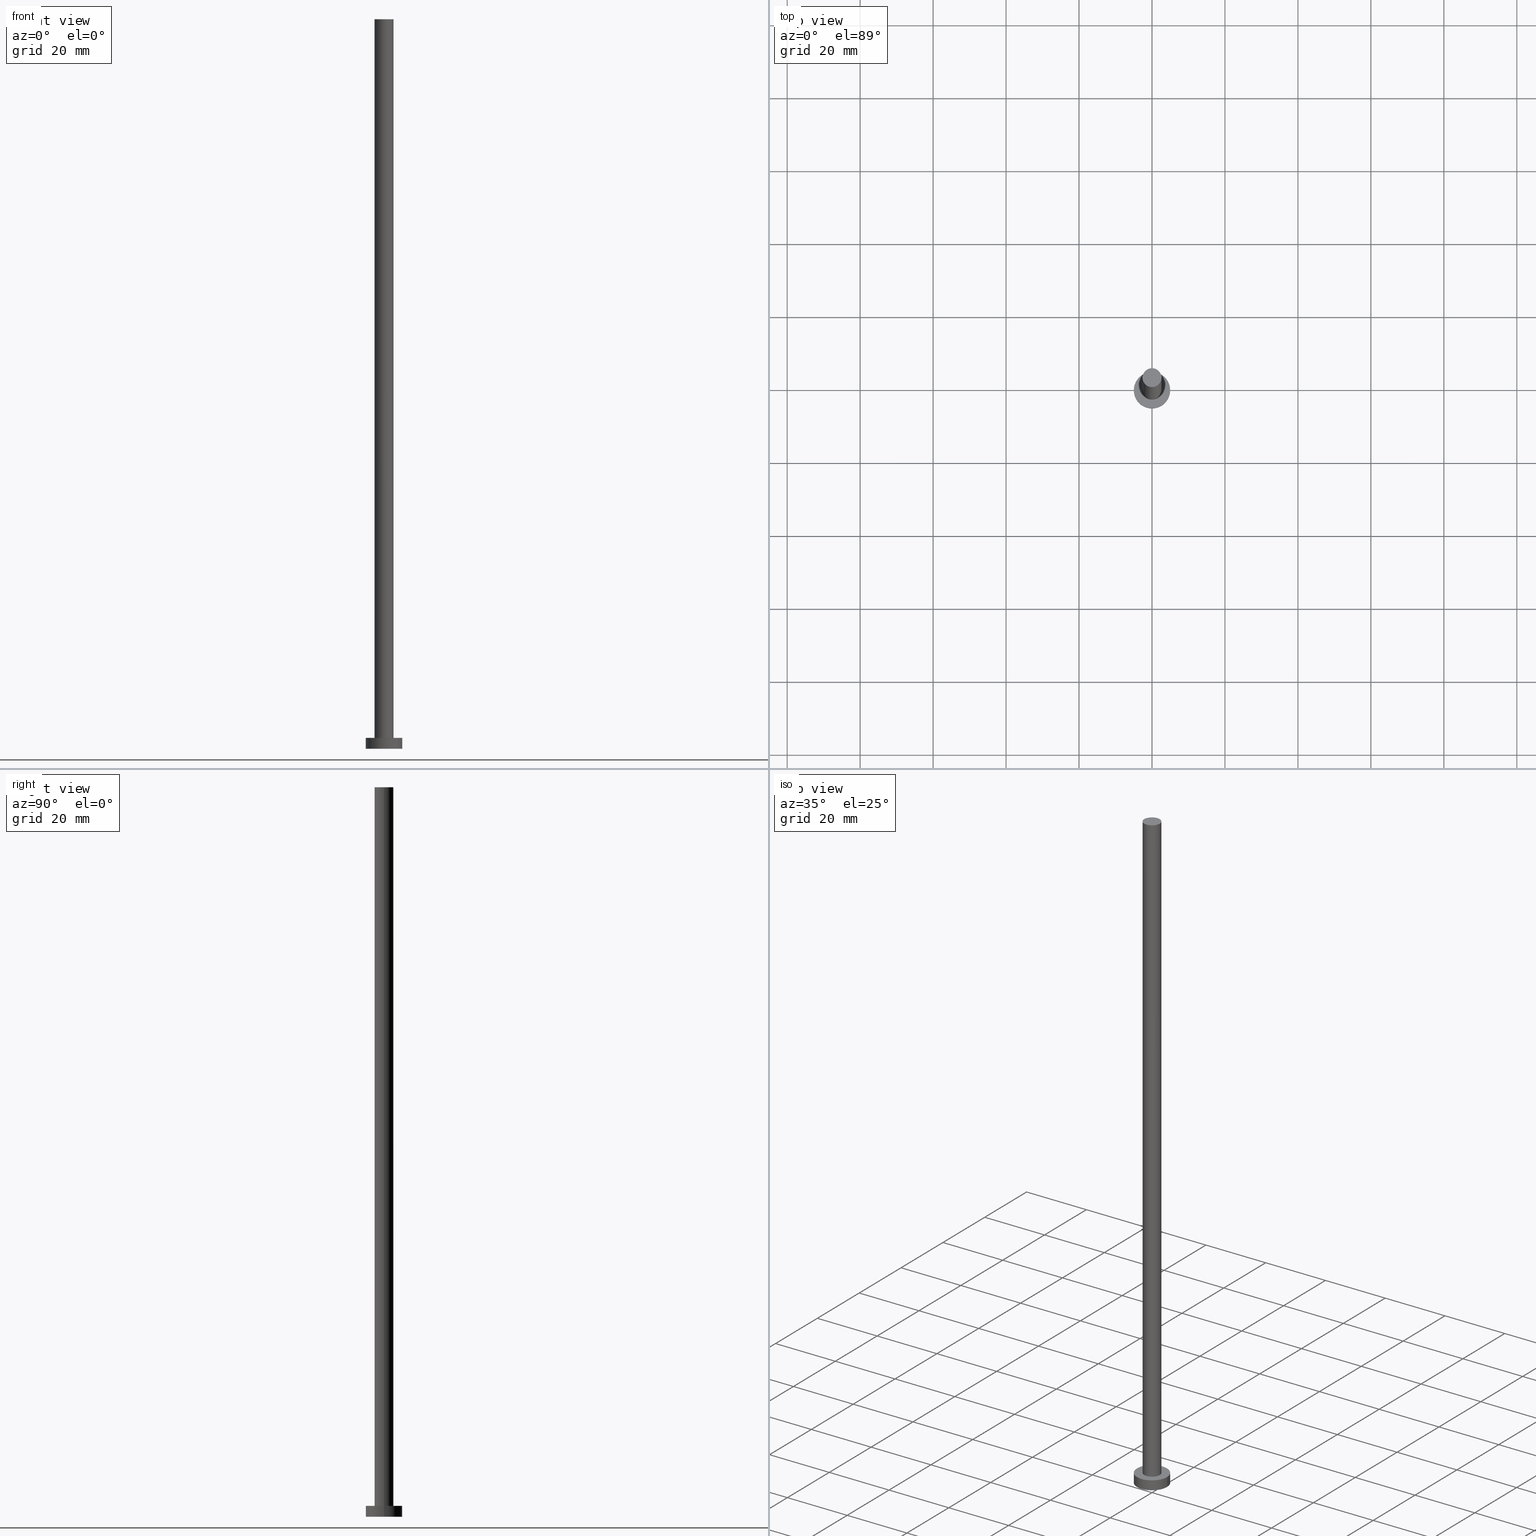
[diagram: canonical four-view strip — front | top / right | iso, engineering-drawing reading convention]
A machine part, canonical four-view strip (front | top / right | iso — engineering-drawing reading convention). The complete STEP part file that produces these views, byte-faithful:
ISO-10303-21;
HEADER;
FILE_DESCRIPTION (( 'STEP AP203' ),
    '1' );
FILE_NAME ('112c.STEP',
    '2023-02-13T15:48:55',
    ( '' ),
    ( '' ),
    'SwSTEP 2.0',
    'SolidWorks 2019',
    '' );
FILE_SCHEMA (( 'CONFIG_CONTROL_DESIGN' ));
ENDSEC;

DATA;
#1 = APPROVAL_DATE_TIME ( #42, #195 ) ;
#2 = VERTEX_POINT ( 'NONE', #236 ) ;
#3 = COORDINATED_UNIVERSAL_TIME_OFFSET ( 1, 0, .AHEAD. ) ;
#4 = PERSON_AND_ORGANIZATION ( #152, #5 ) ;
#5 = ORGANIZATION ( 'NEUR�EN�', 'NEUR�EN�', '' ) ;
#6 = VERTEX_POINT ( 'NONE', #55 ) ;
#7 = ORIENTED_EDGE ( 'NONE', *, *, #43, .F. ) ;
#8 = CARTESIAN_POINT ( 'NONE',  ( -5.000000000000000000, 0.000000000000000000, 3.000000000000000000 ) ) ;
#9 = AXIS2_PLACEMENT_3D ( 'NONE', #88, #146, #169 ) ;
#10 = AXIS2_PLACEMENT_3D ( 'NONE', #227, #147, #206 ) ;
#11 = APPLICATION_CONTEXT ( 'configuration controlled 3d designs of mechanical parts and assemblies' ) ;
#12 = DIRECTION ( 'NONE',  ( 0.000000000000000000, 0.000000000000000000, 1.000000000000000000 ) ) ;
#13 = ADVANCED_FACE ( 'NONE', ( #105 ), #86, .T. ) ;
#14 = FACE_OUTER_BOUND ( 'NONE', #140, .T. ) ;
#15 = APPROVAL_PERSON_ORGANIZATION ( #4, #185, #192 ) ;
#16 = DIRECTION ( 'NONE',  ( 0.000000000000000000, 0.000000000000000000, 1.000000000000000000 ) ) ;
#17 = LINE ( 'NONE', #184, #45 ) ;
#18 = PERSON_AND_ORGANIZATION ( #152, #5 ) ;
#19 = ORIENTED_EDGE ( 'NONE', *, *, #51, .F. ) ;
#20 = AXIS2_PLACEMENT_3D ( 'NONE', #90, #50, #253 ) ;
#21 = PERSON_AND_ORGANIZATION_ROLE ( 'creator' ) ;
#22 = EDGE_LOOP ( 'NONE', ( #176, #135 ) ) ;
#23 = ORIENTED_EDGE ( 'NONE', *, *, #139, .T. ) ;
#24 = APPROVAL_DATE_TIME ( #136, #185 ) ;
#25 = CIRCLE ( 'NONE', #190, 2.600000000000000089 ) ;
#26 = ORIENTED_EDGE ( 'NONE', *, *, #203, .F. ) ;
#27 = LOCAL_TIME ( 16, 48, 55.00000000000000000, #153 ) ;
#28 = DESIGN_CONTEXT ( 'detailed design', #204, 'design' ) ;
#29 = VERTEX_POINT ( 'NONE', #180 ) ;
#30 = DIRECTION ( 'NONE',  ( 1.000000000000000000, 0.000000000000000000, -0.000000000000000000 ) ) ;
#31 = PLANE ( 'NONE',  #200 ) ;
#32 = EDGE_CURVE ( 'NONE', #2, #29, #246, .T. ) ;
#33 = CIRCLE ( 'NONE', #84, 5.000000000000000000 ) ;
#34 = FACE_OUTER_BOUND ( 'NONE', #44, .T. ) ;
#35 =( NAMED_UNIT ( * ) PLANE_ANGLE_UNIT ( ) SI_UNIT ( $, .RADIAN. ) );
#36 = DIRECTION ( 'NONE',  ( -1.000000000000000000, 0.000000000000000000, 0.000000000000000000 ) ) ;
#37 = CARTESIAN_POINT ( 'NONE',  ( 0.000000000000000000, 0.000000000000000000, 3.000000000000000000 ) ) ;
#38 = DIRECTION ( 'NONE',  ( 0.000000000000000000, 0.000000000000000000, 1.000000000000000000 ) ) ;
#39 = DIRECTION ( 'NONE',  ( 0.000000000000000000, 0.000000000000000000, 1.000000000000000000 ) ) ;
#40 = DATE_AND_TIME ( #215, #225 ) ;
#41 = ORIENTED_EDGE ( 'NONE', *, *, #203, .T. ) ;
#42 = DATE_AND_TIME ( #211, #100 ) ;
#43 = EDGE_CURVE ( 'NONE', #214, #119, #62, .T. ) ;
#44 = EDGE_LOOP ( 'NONE', ( #7, #138, #154, #76 ) ) ;
#45 = VECTOR ( 'NONE', #254, 1000.000000000000000 ) ;
#46 = PERSON_AND_ORGANIZATION ( #152, #5 ) ;
#47 = CARTESIAN_POINT ( 'NONE',  ( -2.600000000000000089, 0.000000000000000000, 3.000000000000000000 ) ) ;
#48 = CARTESIAN_POINT ( 'NONE',  ( 2.600000000000000089, 3.184081677783118191E-16, 3.000000000000000000 ) ) ;
#49 = CARTESIAN_POINT ( 'NONE',  ( 0.000000000000000000, 0.000000000000000000, 3.000000000000000000 ) ) ;
#50 = DIRECTION ( 'NONE',  ( -0.000000000000000000, -0.000000000000000000, -1.000000000000000000 ) ) ;
#51 = EDGE_CURVE ( 'NONE', #196, #29, #80, .T. ) ;
#52 = APPROVAL_STATUS ( 'not_yet_approved' ) ;
#53 = VECTOR ( 'NONE', #59, 1000.000000000000000 ) ;
#54 = PERSON_AND_ORGANIZATION ( #152, #5 ) ;
#55 = CARTESIAN_POINT ( 'NONE',  ( 5.000000000000000000, 6.123233995736766282E-16, 3.000000000000000000 ) ) ;
#56 = LOCAL_TIME ( 16, 48, 55.00000000000000000, #3 ) ;
#57 = DATE_TIME_ROLE ( 'creation_date' ) ;
#58 = EDGE_LOOP ( 'NONE', ( #23, #98 ) ) ;
#59 = DIRECTION ( 'NONE',  ( -0.000000000000000000, -0.000000000000000000, -1.000000000000000000 ) ) ;
#60 = DIRECTION ( 'NONE',  ( 1.000000000000000000, 0.000000000000000000, 0.000000000000000000 ) ) ;
#61 = UNCERTAINTY_MEASURE_WITH_UNIT (LENGTH_MEASURE( 1.000000000000000082E-05 ), #207, 'distance_accuracy_value', 'NONE');
#62 = LINE ( 'NONE', #121, #99 ) ;
#63 = DIRECTION ( 'NONE',  ( -1.000000000000000000, 0.000000000000000000, 0.000000000000000000 ) ) ;
#64 = CC_DESIGN_DATE_AND_TIME_ASSIGNMENT ( #134, #201, ( #124 ) ) ;
#65 = CARTESIAN_POINT ( 'NONE',  ( 5.000000000000000000, 6.123233995736766282E-16, 0.000000000000000000 ) ) ;
#66 = FACE_OUTER_BOUND ( 'NONE', #238, .T. ) ;
#67 = AXIS2_PLACEMENT_3D ( 'NONE', #224, #16, #110 ) ;
#68 = CC_DESIGN_PERSON_AND_ORGANIZATION_ASSIGNMENT ( #175, #21, ( #106 ) ) ;
#69 = COORDINATED_UNIVERSAL_TIME_OFFSET ( 1, 0, .AHEAD. ) ;
#70 = AXIS2_PLACEMENT_3D ( 'NONE', #49, #168, #113 ) ;
#71 = PERSON_AND_ORGANIZATION_ROLE ( 'classification_officer' ) ;
#72 = ORIENTED_EDGE ( 'NONE', *, *, #232, .T. ) ;
#73 = CALENDAR_DATE ( 2023, 13, 2 ) ;
#74 = ORIENTED_EDGE ( 'NONE', *, *, #157, .F. ) ;
#75 = CARTESIAN_POINT ( 'NONE',  ( 0.000000000000000000, 0.000000000000000000, 0.000000000000000000 ) ) ;
#76 = ORIENTED_EDGE ( 'NONE', *, *, #149, .T. ) ;
#77 =( GEOMETRIC_REPRESENTATION_CONTEXT ( 3 ) GLOBAL_UNCERTAINTY_ASSIGNED_CONTEXT ( ( #61 ) ) GLOBAL_UNIT_ASSIGNED_CONTEXT ( ( #207, #35, #143 ) ) REPRESENTATION_CONTEXT ( 'NONE', 'WORKASPACE' ) );
#78 = DATE_AND_TIME ( #133, #172 ) ;
#79 = ORIENTED_EDGE ( 'NONE', *, *, #181, .T. ) ;
#80 = CIRCLE ( 'NONE', #129, 5.000000000000000000 ) ;
#81 = CARTESIAN_POINT ( 'NONE',  ( -2.600000000000000089, 0.000000000000000000, 200.0000000000000000 ) ) ;
#82 = PRODUCT_RELATED_PRODUCT_CATEGORY ( 'detail', '', ( #219 ) ) ;
#83 = PRODUCT_DEFINITION_SHAPE ( 'NONE', 'NONE',  #130 ) ;
#84 = AXIS2_PLACEMENT_3D ( 'NONE', #125, #93, #92 ) ;
#85 = AXIS2_PLACEMENT_3D ( 'NONE', #226, #12, #150 ) ;
#86 = PLANE ( 'NONE',  #167 ) ;
#87 = CARTESIAN_POINT ( 'NONE',  ( 0.000000000000000000, 0.000000000000000000, 3.000000000000000000 ) ) ;
#88 = CARTESIAN_POINT ( 'NONE',  ( 0.000000000000000000, 0.000000000000000000, 3.000000000000000000 ) ) ;
#89 = CC_DESIGN_APPROVAL ( #195, ( #106 ) ) ;
#90 = CARTESIAN_POINT ( 'NONE',  ( 0.000000000000000000, 0.000000000000000000, 200.0000000000000000 ) ) ;
#91 = EDGE_CURVE ( 'NONE', #217, #193, #242, .T. ) ;
#92 = DIRECTION ( 'NONE',  ( 1.000000000000000000, 0.000000000000000000, 0.000000000000000000 ) ) ;
#93 = DIRECTION ( 'NONE',  ( 0.000000000000000000, 0.000000000000000000, 1.000000000000000000 ) ) ;
#94 = PERSON_AND_ORGANIZATION_ROLE ( 'creator' ) ;
#95 = CALENDAR_DATE ( 2023, 13, 2 ) ;
#96 = ORIENTED_EDGE ( 'NONE', *, *, #91, .F. ) ;
#97 = APPLICATION_PROTOCOL_DEFINITION ( 'international standard', 'config_control_design', 1994, #11 ) ;
#98 = ORIENTED_EDGE ( 'NONE', *, *, #103, .T. ) ;
#99 = VECTOR ( 'NONE', #163, 1000.000000000000000 ) ;
#100 = LOCAL_TIME ( 16, 48, 55.00000000000000000, #123 ) ;
#101 = MANIFOLD_SOLID_BREP ( 'P�idat vysunut�m3', #177 ) ;
#102 = DIRECTION ( 'NONE',  ( 1.000000000000000000, 0.000000000000000000, 0.000000000000000000 ) ) ;
#103 = EDGE_CURVE ( 'NONE', #214, #217, #25, .T. ) ;
#104 = CARTESIAN_POINT ( 'NONE',  ( 0.000000000000000000, 0.000000000000000000, 200.0000000000000000 ) ) ;
#105 = FACE_OUTER_BOUND ( 'NONE', #58, .T. ) ;
#106 = PRODUCT_DEFINITION_FORMATION_WITH_SPECIFIED_SOURCE ( 'LIBOVOLN�', '', #219, .NOT_KNOWN. ) ;
#107 = ADVANCED_BREP_SHAPE_REPRESENTATION ( '112c', ( #101, #229 ), #77 ) ;
#108 = CYLINDRICAL_SURFACE ( 'NONE', #182, 2.600000000000000089 ) ;
#109 = CARTESIAN_POINT ( 'NONE',  ( 0.000000000000000000, 0.000000000000000000, 0.000000000000000000 ) ) ;
#110 = DIRECTION ( 'NONE',  ( 1.000000000000000000, 0.000000000000000000, 0.000000000000000000 ) ) ;
#111 = ADVANCED_FACE ( 'NONE', ( #199 ), #31, .F. ) ;
#112 = DIRECTION ( 'NONE',  ( 1.000000000000000000, 0.000000000000000000, -0.000000000000000000 ) ) ;
#113 = DIRECTION ( 'NONE',  ( 1.000000000000000000, 0.000000000000000000, 0.000000000000000000 ) ) ;
#114 = APPROVAL_ROLE ( '' ) ;
#115 = CC_DESIGN_APPROVAL ( #185, ( #124 ) ) ;
#116 = ORIENTED_EDGE ( 'NONE', *, *, #32, .T. ) ;
#117 = SHAPE_DEFINITION_REPRESENTATION ( #83, #107 ) ;
#118 = ORIENTED_EDGE ( 'NONE', *, *, #51, .T. ) ;
#119 = VERTEX_POINT ( 'NONE', #48 ) ;
#120 = CC_DESIGN_SECURITY_CLASSIFICATION ( #124, ( #106 ) ) ;
#121 = CARTESIAN_POINT ( 'NONE',  ( 2.600000000000000089, 3.184081677783118191E-16, 200.0000000000000000 ) ) ;
#122 = DIRECTION ( 'NONE',  ( 0.000000000000000000, 0.000000000000000000, 1.000000000000000000 ) ) ;
#123 = COORDINATED_UNIVERSAL_TIME_OFFSET ( 1, 0, .AHEAD. ) ;
#124 = SECURITY_CLASSIFICATION ( '', '', #243 ) ;
#125 = CARTESIAN_POINT ( 'NONE',  ( 0.000000000000000000, 0.000000000000000000, 3.000000000000000000 ) ) ;
#126 = DIRECTION ( 'NONE',  ( -0.000000000000000000, -0.000000000000000000, -1.000000000000000000 ) ) ;
#127 = FACE_BOUND ( 'NONE', #191, .T. ) ;
#128 = DIRECTION ( 'NONE',  ( -0.000000000000000000, -0.000000000000000000, -1.000000000000000000 ) ) ;
#129 = AXIS2_PLACEMENT_3D ( 'NONE', #245, #198, #60 ) ;
#130 = PRODUCT_DEFINITION ( 'NEZN�M�', '', #106, #28 ) ;
#131 = CC_DESIGN_APPROVAL ( #220, ( #130 ) ) ;
#132 = CARTESIAN_POINT ( 'NONE',  ( -2.600000000000000089, 0.000000000000000000, 200.0000000000000000 ) ) ;
#133 = CALENDAR_DATE ( 2023, 13, 2 ) ;
#134 = DATE_AND_TIME ( #95, #27 ) ;
#135 = ORIENTED_EDGE ( 'NONE', *, *, #166, .T. ) ;
#136 = DATE_AND_TIME ( #73, #56 ) ;
#137 = AXIS2_PLACEMENT_3D ( 'NONE', #208, #251, #187 ) ;
#138 = ORIENTED_EDGE ( 'NONE', *, *, #139, .F. ) ;
#139 = EDGE_CURVE ( 'NONE', #217, #214, #164, .T. ) ;
#140 = EDGE_LOOP ( 'NONE', ( #156, #213, #41, #96 ) ) ;
#141 = APPROVAL_PERSON_ORGANIZATION ( #18, #195, #173 ) ;
#142 = DIRECTION ( 'NONE',  ( 0.000000000000000000, 0.000000000000000000, 1.000000000000000000 ) ) ;
#143 =( NAMED_UNIT ( * ) SI_UNIT ( $, .STERADIAN. ) SOLID_ANGLE_UNIT ( ) );
#144 = APPROVAL_PERSON_ORGANIZATION ( #46, #220, #114 ) ;
#145 = CC_DESIGN_PERSON_AND_ORGANIZATION_ASSIGNMENT ( #54, #222, ( #219 ) ) ;
#146 = DIRECTION ( 'NONE',  ( -0.000000000000000000, -0.000000000000000000, -1.000000000000000000 ) ) ;
#147 = DIRECTION ( 'NONE',  ( 0.000000000000000000, 0.000000000000000000, 1.000000000000000000 ) ) ;
#148 = FACE_OUTER_BOUND ( 'NONE', #22, .T. ) ;
#149 = EDGE_CURVE ( 'NONE', #193, #119, #161, .T. ) ;
#150 = DIRECTION ( 'NONE',  ( 1.000000000000000000, 0.000000000000000000, 0.000000000000000000 ) ) ;
#151 = COORDINATED_UNIVERSAL_TIME_OFFSET ( 1, 0, .AHEAD. ) ;
#152 = PERSON ( 'NEUR�EN�', 'NEUR�EN�', 'NEUR�EN�', ('NEUR�EN�'), ('NEUR�EN�'), ('NEUR�EN�') ) ;
#153 = COORDINATED_UNIVERSAL_TIME_OFFSET ( 1, 0, .AHEAD. ) ;
#154 = ORIENTED_EDGE ( 'NONE', *, *, #91, .T. ) ;
#155 = APPLICATION_PROTOCOL_DEFINITION ( 'international standard', 'config_control_design', 1994, #204 ) ;
#156 = ORIENTED_EDGE ( 'NONE', *, *, #103, .F. ) ;
#157 = EDGE_CURVE ( 'NONE', #2, #6, #33, .T. ) ;
#158 = PERSON_AND_ORGANIZATION ( #152, #5 ) ;
#159 = CC_DESIGN_DATE_AND_TIME_ASSIGNMENT ( #78, #57, ( #130 ) ) ;
#160 = ORIENTED_EDGE ( 'NONE', *, *, #181, .F. ) ;
#161 = CIRCLE ( 'NONE', #67, 2.600000000000000089 ) ;
#162 = CC_DESIGN_PERSON_AND_ORGANIZATION_ASSIGNMENT ( #233, #71, ( #124 ) ) ;
#163 = DIRECTION ( 'NONE',  ( -0.000000000000000000, -0.000000000000000000, -1.000000000000000000 ) ) ;
#164 = CIRCLE ( 'NONE', #85, 2.600000000000000089 ) ;
#165 = CARTESIAN_POINT ( 'NONE',  ( 0.000000000000000000, 0.000000000000000000, 200.0000000000000000 ) ) ;
#166 = EDGE_CURVE ( 'NONE', #6, #2, #228, .T. ) ;
#167 = AXIS2_PLACEMENT_3D ( 'NONE', #104, #122, #30 ) ;
#168 = DIRECTION ( 'NONE',  ( 0.000000000000000000, 0.000000000000000000, 1.000000000000000000 ) ) ;
#169 = DIRECTION ( 'NONE',  ( -1.000000000000000000, 0.000000000000000000, 0.000000000000000000 ) ) ;
#170 = CYLINDRICAL_SURFACE ( 'NONE', #20, 2.600000000000000089 ) ;
#171 = CYLINDRICAL_SURFACE ( 'NONE', #9, 5.000000000000000000 ) ;
#172 = LOCAL_TIME ( 16, 48, 55.00000000000000000, #151 ) ;
#173 = APPROVAL_ROLE ( '' ) ;
#174 = ORIENTED_EDGE ( 'NONE', *, *, #32, .F. ) ;
#175 = PERSON_AND_ORGANIZATION ( #152, #5 ) ;
#176 = ORIENTED_EDGE ( 'NONE', *, *, #157, .T. ) ;
#177 = CLOSED_SHELL ( 'NONE', ( #244, #194, #240, #230, #111, #239, #13 ) ) ;
#178 = MECHANICAL_CONTEXT ( 'NONE', #11, 'mechanical' ) ;
#179 = EDGE_LOOP ( 'NONE', ( #160, #74, #116, #72 ) ) ;
#180 = CARTESIAN_POINT ( 'NONE',  ( -5.000000000000000000, 0.000000000000000000, 0.000000000000000000 ) ) ;
#181 = EDGE_CURVE ( 'NONE', #6, #196, #17, .T. ) ;
#182 = AXIS2_PLACEMENT_3D ( 'NONE', #165, #126, #36 ) ;
#183 = DIRECTION ( 'NONE',  ( 1.000000000000000000, 0.000000000000000000, -0.000000000000000000 ) ) ;
#184 = CARTESIAN_POINT ( 'NONE',  ( 5.000000000000000000, 6.123233995736766282E-16, 3.000000000000000000 ) ) ;
#185 = APPROVAL ( #212, 'NEUR�EN�' ) ;
#186 = FACE_OUTER_BOUND ( 'NONE', #179, .T. ) ;
#187 = DIRECTION ( 'NONE',  ( 1.000000000000000000, 0.000000000000000000, 0.000000000000000000 ) ) ;
#188 = CYLINDRICAL_SURFACE ( 'NONE', #209, 5.000000000000000000 ) ;
#189 = PERSON_AND_ORGANIZATION ( #152, #5 ) ;
#190 = AXIS2_PLACEMENT_3D ( 'NONE', #223, #142, #221 ) ;
#191 = EDGE_LOOP ( 'NONE', ( #234, #26 ) ) ;
#192 = APPROVAL_ROLE ( '' ) ;
#193 = VERTEX_POINT ( 'NONE', #47 ) ;
#194 = ADVANCED_FACE ( 'NONE', ( #66 ), #171, .T. ) ;
#195 = APPROVAL ( #52, 'NEUR�EN�' ) ;
#196 = VERTEX_POINT ( 'NONE', #65 ) ;
#197 = ORIENTED_EDGE ( 'NONE', *, *, #232, .F. ) ;
#198 = DIRECTION ( 'NONE',  ( 0.000000000000000000, 0.000000000000000000, 1.000000000000000000 ) ) ;
#199 = FACE_OUTER_BOUND ( 'NONE', #216, .T. ) ;
#200 = AXIS2_PLACEMENT_3D ( 'NONE', #109, #38, #183 ) ;
#201 = DATE_TIME_ROLE ( 'classification_date' ) ;
#202 = CIRCLE ( 'NONE', #137, 5.000000000000000000 ) ;
#203 = EDGE_CURVE ( 'NONE', #119, #193, #218, .T. ) ;
#204 = APPLICATION_CONTEXT ( 'configuration controlled 3d designs of mechanical parts and assemblies' ) ;
#205 = VECTOR ( 'NONE', #247, 1000.000000000000000 ) ;
#206 = DIRECTION ( 'NONE',  ( 1.000000000000000000, 0.000000000000000000, 0.000000000000000000 ) ) ;
#207 =( LENGTH_UNIT ( ) NAMED_UNIT ( * ) SI_UNIT ( .MILLI., .METRE. ) );
#208 = CARTESIAN_POINT ( 'NONE',  ( 0.000000000000000000, 0.000000000000000000, 0.000000000000000000 ) ) ;
#209 = AXIS2_PLACEMENT_3D ( 'NONE', #37, #128, #63 ) ;
#210 = PLANE ( 'NONE',  #255 ) ;
#211 = CALENDAR_DATE ( 2023, 13, 2 ) ;
#212 = APPROVAL_STATUS ( 'not_yet_approved' ) ;
#213 = ORIENTED_EDGE ( 'NONE', *, *, #43, .T. ) ;
#214 = VERTEX_POINT ( 'NONE', #250 ) ;
#215 = CALENDAR_DATE ( 2023, 13, 2 ) ;
#216 = EDGE_LOOP ( 'NONE', ( #197, #19 ) ) ;
#217 = VERTEX_POINT ( 'NONE', #132 ) ;
#218 = CIRCLE ( 'NONE', #70, 2.600000000000000089 ) ;
#219 = PRODUCT ( '112c', '112c', '', ( #178 ) ) ;
#220 = APPROVAL ( #237, 'NEUR�EN�' ) ;
#221 = DIRECTION ( 'NONE',  ( 1.000000000000000000, 0.000000000000000000, 0.000000000000000000 ) ) ;
#222 = PERSON_AND_ORGANIZATION_ROLE ( 'design_owner' ) ;
#223 = CARTESIAN_POINT ( 'NONE',  ( 0.000000000000000000, 0.000000000000000000, 200.0000000000000000 ) ) ;
#224 = CARTESIAN_POINT ( 'NONE',  ( 0.000000000000000000, 0.000000000000000000, 3.000000000000000000 ) ) ;
#225 = LOCAL_TIME ( 16, 48, 55.00000000000000000, #69 ) ;
#226 = CARTESIAN_POINT ( 'NONE',  ( 0.000000000000000000, 0.000000000000000000, 200.0000000000000000 ) ) ;
#227 = CARTESIAN_POINT ( 'NONE',  ( 0.000000000000000000, 0.000000000000000000, 3.000000000000000000 ) ) ;
#228 = CIRCLE ( 'NONE', #10, 5.000000000000000000 ) ;
#229 = AXIS2_PLACEMENT_3D ( 'NONE', #75, #39, #102 ) ;
#230 = ADVANCED_FACE ( 'NONE', ( #127, #148 ), #210, .T. ) ;
#231 = APPROVAL_DATE_TIME ( #40, #220 ) ;
#232 = EDGE_CURVE ( 'NONE', #29, #196, #202, .T. ) ;
#233 = PERSON_AND_ORGANIZATION ( #152, #5 ) ;
#234 = ORIENTED_EDGE ( 'NONE', *, *, #149, .F. ) ;
#235 = PERSON_AND_ORGANIZATION_ROLE ( 'design_supplier' ) ;
#236 = CARTESIAN_POINT ( 'NONE',  ( -5.000000000000000000, 0.000000000000000000, 3.000000000000000000 ) ) ;
#237 = APPROVAL_STATUS ( 'not_yet_approved' ) ;
#238 = EDGE_LOOP ( 'NONE', ( #241, #79, #118, #174 ) ) ;
#239 = ADVANCED_FACE ( 'NONE', ( #34 ), #108, .T. ) ;
#240 = ADVANCED_FACE ( 'NONE', ( #186 ), #188, .T. ) ;
#241 = ORIENTED_EDGE ( 'NONE', *, *, #166, .F. ) ;
#242 = LINE ( 'NONE', #81, #53 ) ;
#243 = SECURITY_CLASSIFICATION_LEVEL ( 'unclassified' ) ;
#244 = ADVANCED_FACE ( 'NONE', ( #14 ), #170, .T. ) ;
#245 = CARTESIAN_POINT ( 'NONE',  ( 0.000000000000000000, 0.000000000000000000, 0.000000000000000000 ) ) ;
#246 = LINE ( 'NONE', #8, #205 ) ;
#247 = DIRECTION ( 'NONE',  ( -0.000000000000000000, -0.000000000000000000, -1.000000000000000000 ) ) ;
#248 = DIRECTION ( 'NONE',  ( 0.000000000000000000, 0.000000000000000000, 1.000000000000000000 ) ) ;
#249 = CC_DESIGN_PERSON_AND_ORGANIZATION_ASSIGNMENT ( #189, #94, ( #130 ) ) ;
#250 = CARTESIAN_POINT ( 'NONE',  ( 2.600000000000000089, 3.184081677783118191E-16, 200.0000000000000000 ) ) ;
#251 = DIRECTION ( 'NONE',  ( 0.000000000000000000, 0.000000000000000000, 1.000000000000000000 ) ) ;
#252 = CC_DESIGN_PERSON_AND_ORGANIZATION_ASSIGNMENT ( #158, #235, ( #106 ) ) ;
#253 = DIRECTION ( 'NONE',  ( -1.000000000000000000, 0.000000000000000000, 0.000000000000000000 ) ) ;
#254 = DIRECTION ( 'NONE',  ( -0.000000000000000000, -0.000000000000000000, -1.000000000000000000 ) ) ;
#255 = AXIS2_PLACEMENT_3D ( 'NONE', #87, #248, #112 ) ;
ENDSEC;
END-ISO-10303-21;
